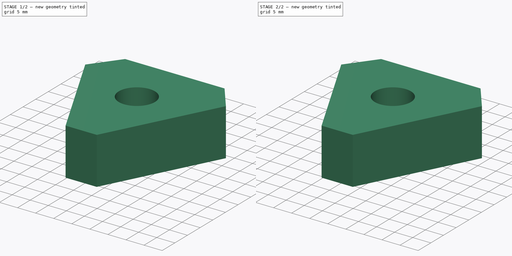
[diagram: build sequence overview — one tinted view per stage of 2, left to right]
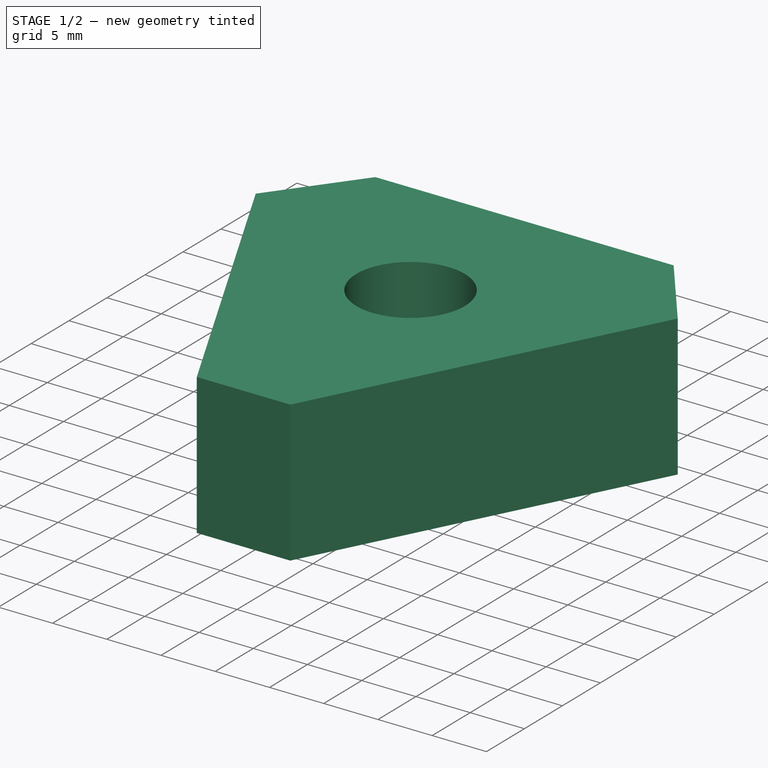
[diagram: stage 1 of 2 — iso view after this stage's code; geometry added in this stage tinted green]
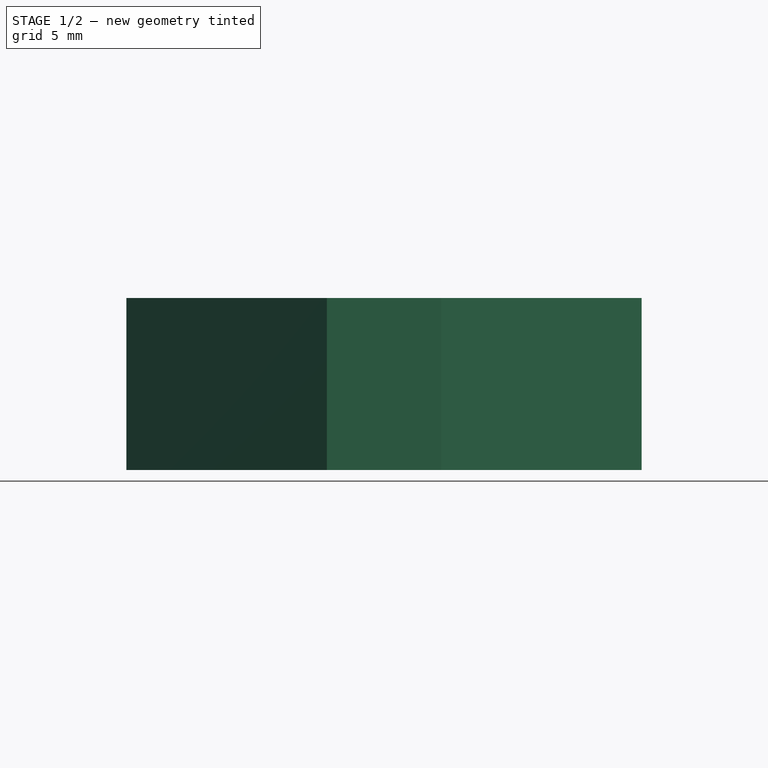
[diagram: stage 1 of 2 — front view after this stage's code; geometry added in this stage tinted green]
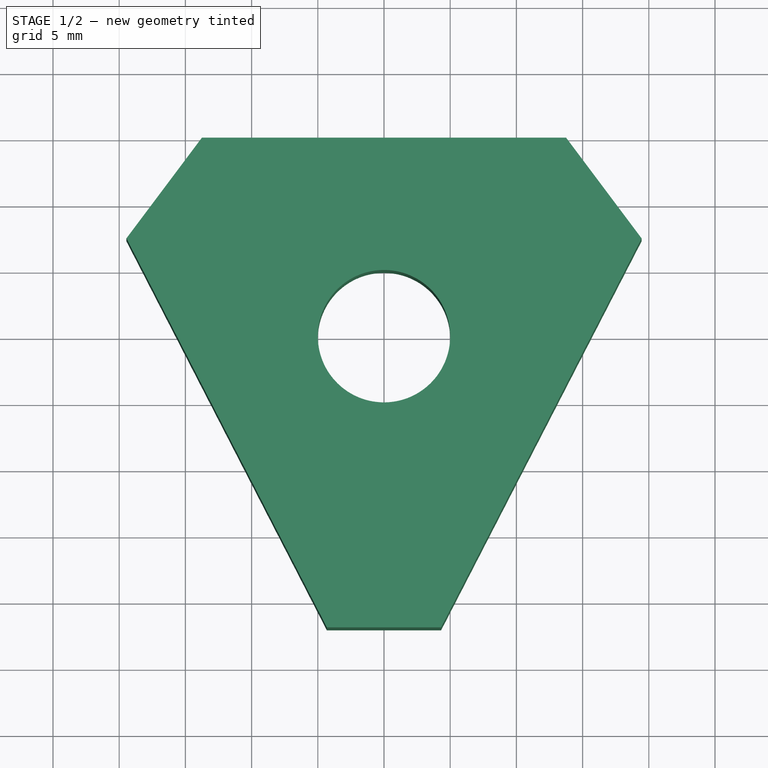
[diagram: stage 1 of 2 — top view after this stage's code; geometry added in this stage tinted green]
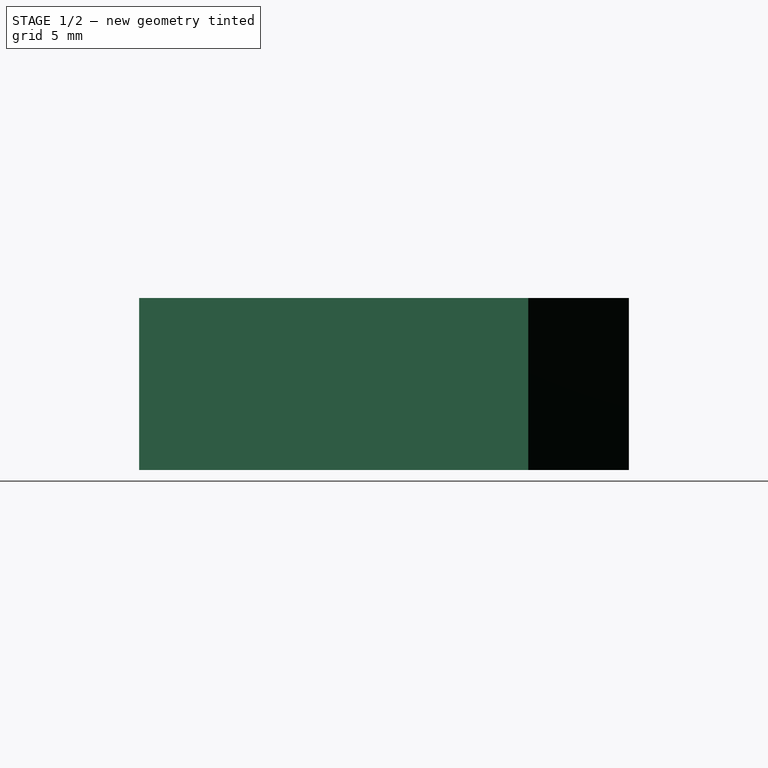
[diagram: stage 1 of 2 — right view after this stage's code; geometry added in this stage tinted green]
FCSTD DOCUMENT  (FreeCAD 0.21R33771 (Git))
Label: Stator_CoilWinder_Spacer_Triangular
License: All rights reserved
LicenseURL: http://en.wikipedia.org/wiki/All_rights_reserved
objects: Sketcher::SketchObject×1, PartDesign::Pad×1, Spreadsheet::Sheet×1, PartDesign::Mirrored×1, PartDesign::Body×1, Part::Refine×1
note: 6 computed .brp shape members not serialized (recipe doc carries the construction recipe); baked Part::Feature solids carry a one-line shape summary decoded from their .brp
EXTERNAL_REF file=../../../Master_of_Puppets.FCStd obj=Alternator
EXTERNAL_REF file=../../../Master_of_Puppets.FCStd obj=Spreadsheet

FEATURE [Sketcher::SketchObject] Sketch
  FullyConstrained = true
  MapMode = 5
  Support = -> [XY_Plane001]
  expr: Constraints[17] = Spreadsheet.CoilWinderCenterRodRadius
  expr: Constraints[23] = Spreadsheet.TriangularCoilWinderCircumradius
  expr: Constraints[24] = Spreadsheet.HorizontalDistanceBetweenPins
  expr: Constraints[35] = Spreadsheet.DistanceBetweenTriangularCoilAndTapeNotch
  expr: Constraints[38] = Spreadsheet.DistanceBetweenTriangularCoilAndTapeNotch
  expr: Constraints[46] = Spreadsheet.CoilWinderPinRadius * 2
  expr: Constraints[54] = Spreadsheet.CoilWinderPinRadius * 2
  expr: Constraints[7] = Spreadsheet.BottomHoleRadius
  expr: Constraints[8] = Spreadsheet.CoilWinderPinRadius
  sketch-geometry (21):
    g0: LineSegment StartX=0 StartY=-26 StartZ=0 EndX=20 EndY=15 EndZ=0
    g1: LineSegment StartX=20 StartY=15 StartZ=0 EndX=-20 EndY=15 EndZ=0
    g2: LineSegment StartX=-20 StartY=15 StartZ=0 EndX=0 EndY=-26 EndZ=0
    g3: Circle CenterX=0 CenterY=0 CenterZ=0 NormalX=0 NormalY=0 NormalZ=1 AngleXU=0 Radius=30
    g4: Circle CenterX=0 CenterY=-26 CenterZ=0 NormalX=0 NormalY=0 NormalZ=1 AngleXU=0 Radius=4
    g5: Circle CenterX=-20 CenterY=15 CenterZ=0 NormalX=0 NormalY=0 NormalZ=1 AngleXU=0 Radius=5
    g6: Circle CenterX=20 CenterY=15 CenterZ=0 NormalX=0 NormalY=0 NormalZ=1 AngleXU=0 Radius=5
    g7: LineSegment StartX=-13.75 StartY=15 StartZ=0 EndX=13.75 EndY=15 EndZ=0
    g8: LineSegment StartX=1.95122 StartY=-22 StartZ=0 EndX=-1.95122 EndY=-22 EndZ=0
    g9: Circle CenterX=0 CenterY=0 CenterZ=0 NormalX=0 NormalY=0 NormalZ=1 AngleXU=0 Radius=5
    g10: LineSegment StartX=13.75 StartY=15 StartZ=0 EndX=20 EndY=15 EndZ=0
    g11: LineSegment StartX=19.4553 StartY=7.39293 StartZ=0 EndX=4.31084 EndY=-22 EndZ=0
    g12: LineSegment StartX=4.31084 StartY=-22 StartZ=0 EndX=1.95122 EndY=-22 EndZ=0
    g13: LineSegment StartX=-19.4553 StartY=7.39292 StartZ=0 EndX=-4.31084 EndY=-22 EndZ=0
    g14: LineSegment StartX=-4.31084 StartY=-22 StartZ=0 EndX=-1.95122 EndY=-22 EndZ=0
    g15: LineSegment StartX=-24.4447 StartY=12.7099 StartZ=0 EndX=-3.55577 EndY=-27.8321 EndZ=0
    g16: LineSegment StartX=3.55577 StartY=-27.8321 StartZ=0 EndX=24.4447 EndY=12.7099 EndZ=0
    g17: LineSegment StartX=-19.4553 StartY=7.39292 StartZ=0 EndX=-13.75 EndY=15 EndZ=0
    g18: LineSegment StartX=-20 StartY=15 StartZ=0 EndX=-24 EndY=18 EndZ=0
    g19: LineSegment StartX=13.75 StartY=15 StartZ=0 EndX=19.4553 EndY=7.39293 EndZ=0
    g20: LineSegment StartX=20 StartY=15 StartZ=0 EndX=24 EndY=18 EndZ=0
  constraints (55):
    c: Coincident(g0,g1)
    c: Coincident(g1,g2)
    c: Coincident(g2,g0)
    c: Equal(g0,g2)
    c: Coincident(g3,g-1)
    c: Tangent(g4,g3)
    c: PointOnObject(g4,g-2)
    c: Radius(g4) = 4
    c: Radius(g5) = 5
    c: Equal(g6,g5)
    c: PointOnObject(g7,g1)
    c: PointOnObject(g7,g1)
    c: PointOnObject(g8,g0)
    c: PointOnObject(g8,g2)
    c: Tangent(g8,g4)
    c: Horizontal(g8)
    c: Coincident(g9,g-1)
    c: Radius(g9) = 5
    c: Coincident(g10,g7)
    c: Coincident(g10,g0)
    c: Coincident(g0,g6)
    c: Coincident(g5,g1)
    c: Coincident(g0,g4)
    c: Radius(g3) = 30
    c: DistanceX(g1,g0) = 40
    c: Tangent(g3,g6)
    c: Horizontal(g11,g8)
    c: Coincident(g12,g11)
    c: Coincident(g12,g8)
    c: Horizontal(g13,g8)
    c: Coincident(g14,g13)
    c: Coincident(g14,g8)
    c: Tangent(g15,g5) = -1.5708
    c: Tangent(g15,g4) = -1.5708
    c: Parallel(g13,g15)
    c: Distance(g13,g15) = 2
    c: Tangent(g16,g6) = -1.5708
    c: Tangent(g16,g4) = -1.5708
    c: Distance(g11,g16) = 2
    c: Parallel(g16,g11)
    c: Coincident(g17,g13)
    c: Coincident(g17,g7)
    c: Horizontal(g1)
    c: Coincident(g18,g1)
    c: PointOnObject(g18,g3)
    c: PointOnObject(g18,g5)
    c: Distance(g18,g17) = 10
    c: Tangent(g17,g5)
    c: Coincident(g19,g7)
    c: Coincident(g19,g11)
    c: Tangent(g19,g6)
    c: Coincident(g20,g0)
    c: PointOnObject(g20,g6)
    c: PointOnObject(g20,g3)
    c: Distance(g20,g19) = 10
FEATURE [PartDesign::Pad] Pad
  AllowMultiFace = false
  Direction = (0,0,1)
  Length = 13
  Length2 = 100
  Profile = -> Sketch
  Type = 0
  expr: Length = Spreadsheet.StatorThickness
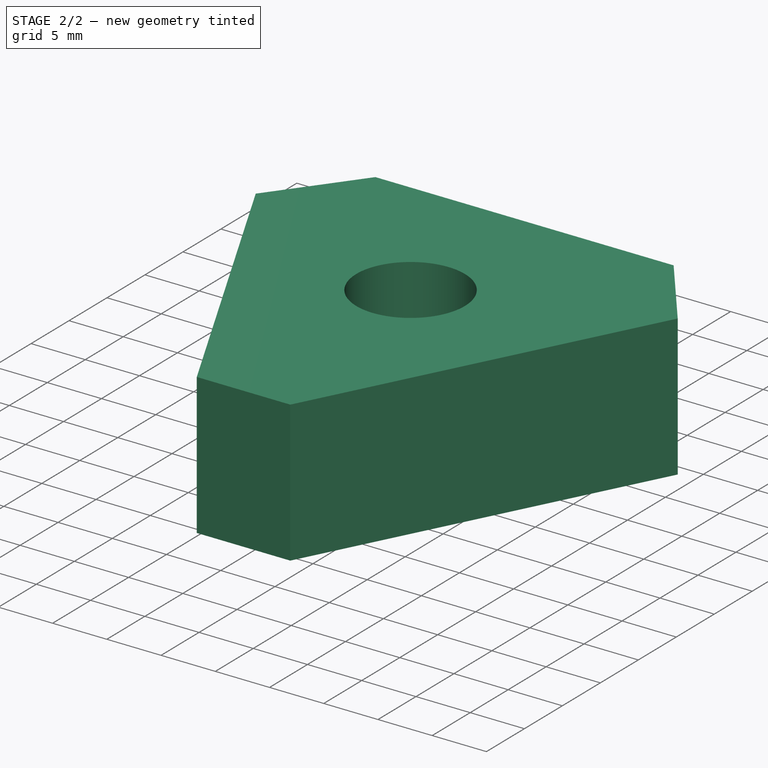
[diagram: stage 2 of 2 — iso view after this stage's code; geometry added in this stage tinted green]
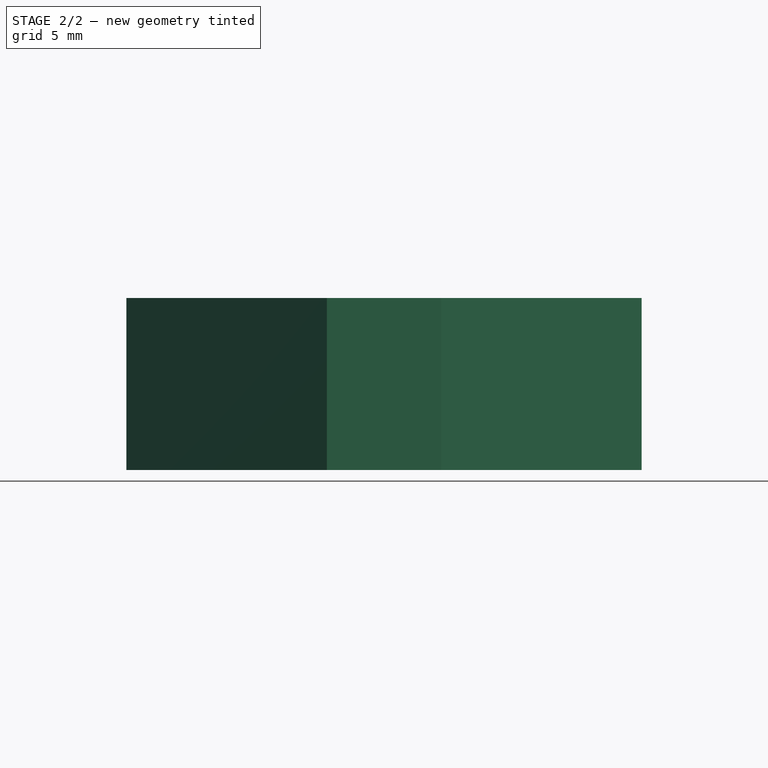
[diagram: stage 2 of 2 — front view after this stage's code; geometry added in this stage tinted green]
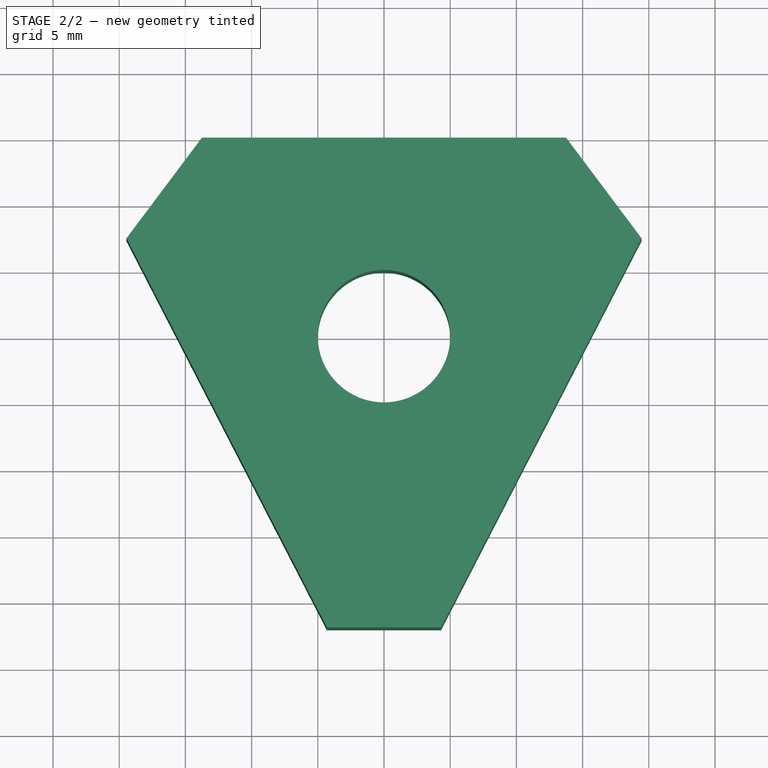
[diagram: stage 2 of 2 — top view after this stage's code; geometry added in this stage tinted green]
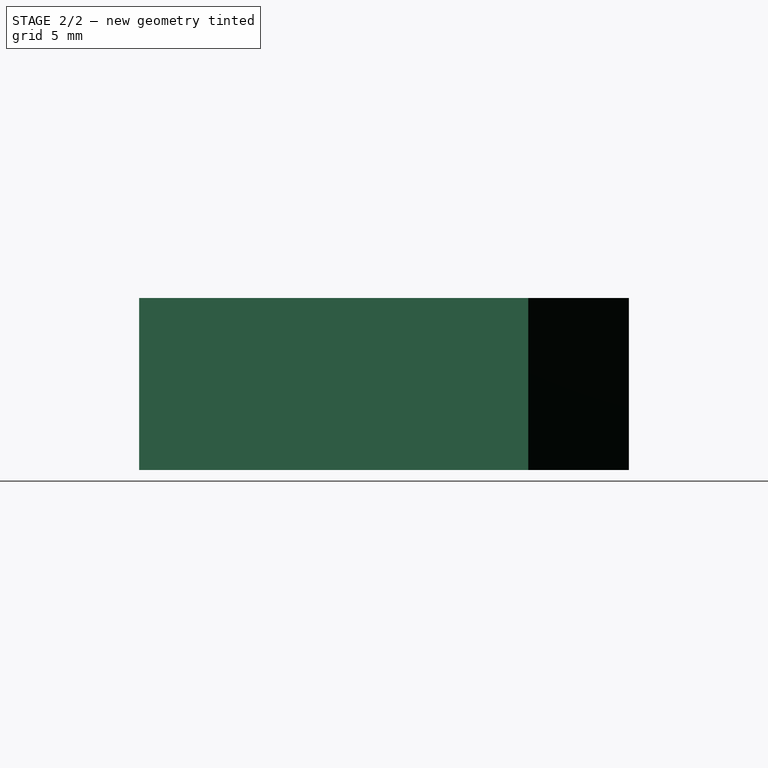
[diagram: stage 2 of 2 — right view after this stage's code; geometry added in this stage tinted green]
FEATURE [Spreadsheet::Sheet] Spreadsheet
  cells = A1='Inputs; A2='Spreadsheet; A3='MagnetWidth; B3(MagnetWidth)==Master_of_Puppets#Spreadsheet.MagnetWidth; A4='StatorThickness; B4(StatorThickness)==Master_of_Puppets#Spreadsheet.StatorThickness; A5='CoilHoleWidthAtInnerRadius; B5(CoilHoleWidthAtInnerRadius)==Master_of_Puppets#Spreadsheet.CoilHoleWidthAtInnerRadius; A6='CoilType; B6(CoilType)==Master_of_Puppets#Spreadsheet.CoilType; A7='HorizontalDistanceBetweenPins; B7(HorizontalDistanceBetweenPins)==Master_of_Puppets#Alternator.TriangularHorizontalDistanceBetweenPins; A8='Alternator; A9='CoilWinderCenterRodRadius; B9(CoilWinderCenterRodRadius)==Master_of_Puppets#Alternator.CoilWinderCenterRodRadius; A10='CoilWinderPinRadius; B10(CoilWinderPinRadius)==Master_of_Puppets#Alternator.CoilWinderPinRadius; A11='BottomHoleRadius; B11(BottomHoleRadius)==Master_of_Puppets#Alternator.CoilWinderDiskBottomHoleRadius; A12='TriangularCoilWinderCircumradius; B12(TriangularCoilWinderCircumradius)==Master_of_Puppets#Alternator.TriangularCoilWinderCircumradius; A13='DistanceBetweenTriangularCoilAndTapeNotch; B13(DistanceBetweenTriangularCoilAndTapeNotch)==Master_of_Puppets#Alternator.DistanceBetweenTriangularCoilAndTapeNotch
FEATURE [PartDesign::Mirrored] Mirrored
  BaseFeature = -> Pad
  MirrorPlane = -> Sketch [V_Axis]
  Originals = -> [Pad]
FEATURE [PartDesign::Body] PadBody  label="Body"
  Group = -> [Sketch,Pad,Mirrored]
  Origin = -> Origin001
  Tip = -> Mirrored
FEATURE [Part::Refine] PadBody001  label="Stator_CoilWinder_Spacer"
  Openafpm_Flat = true
  Source = -> PadBody
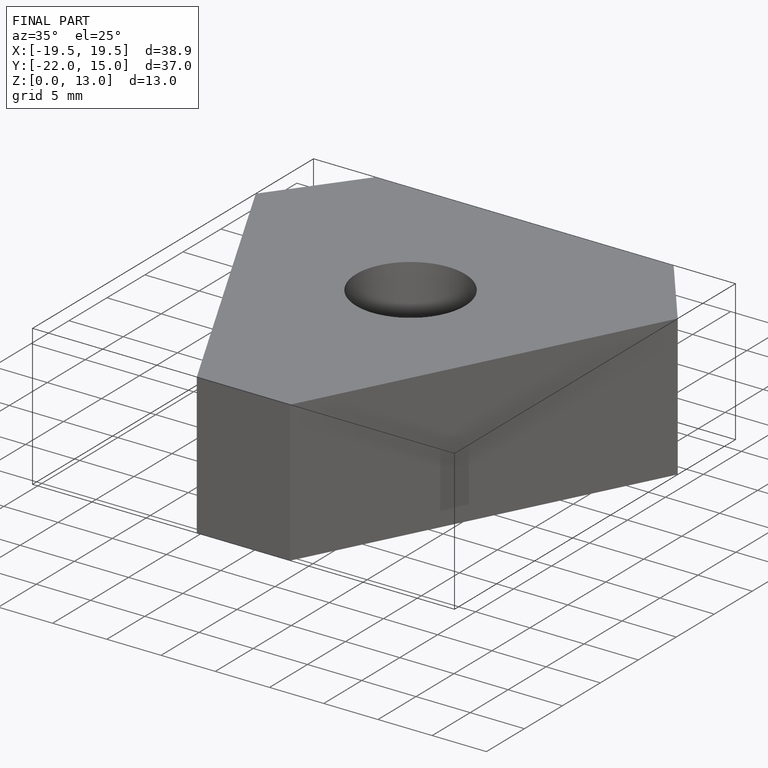
[diagram: finished part — iso view with bounding-box wireframe]
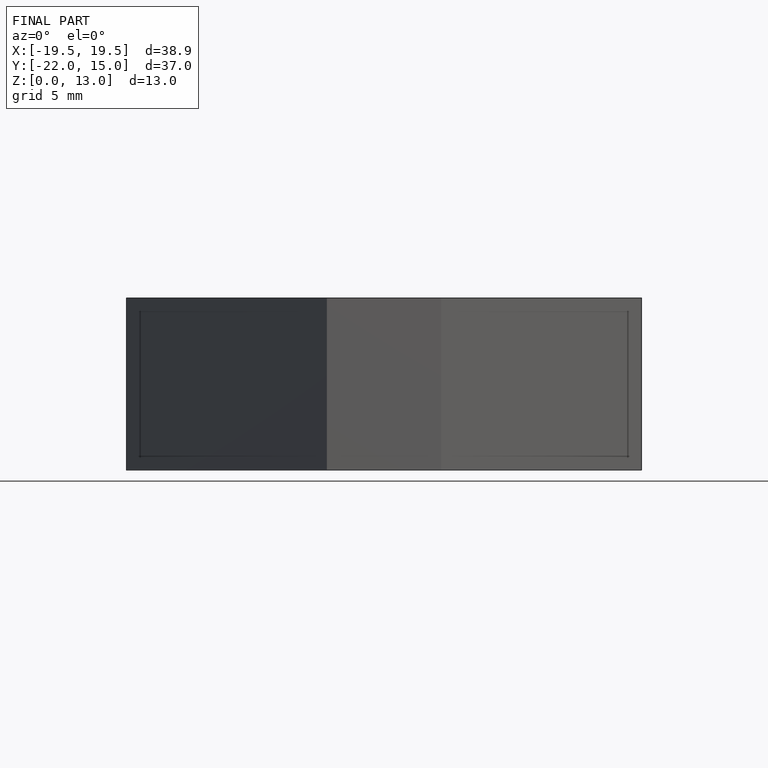
[diagram: finished part — front view with bounding-box wireframe]
